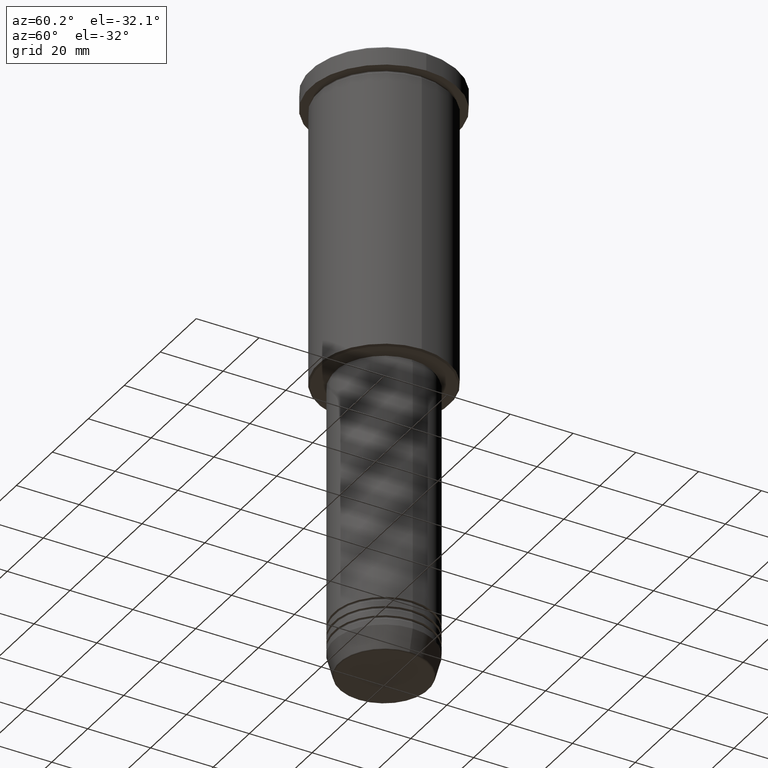
[diagram: clean part render]
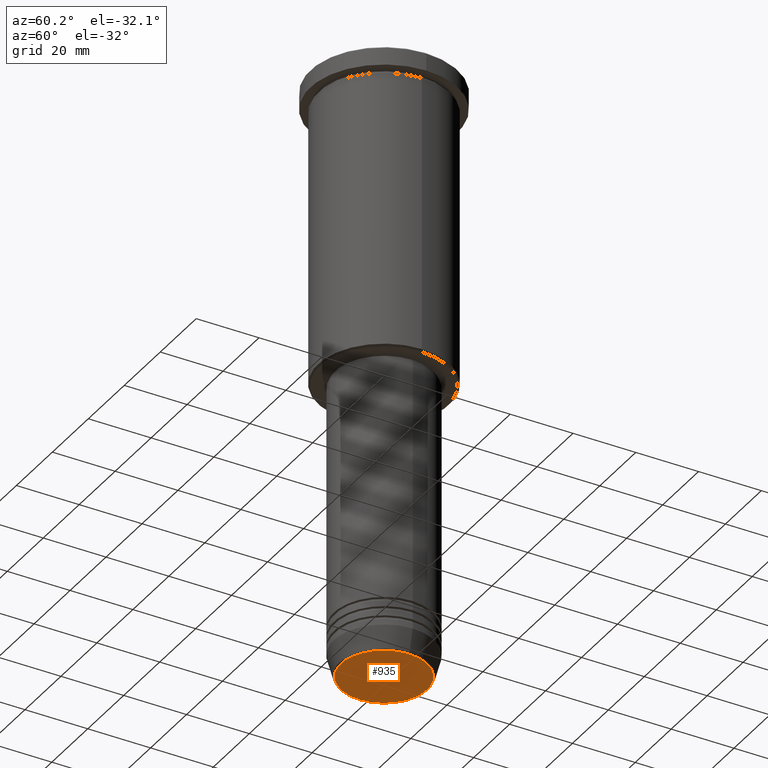
[diagram: same view with one face highlighted and labeled with its STEP entity id]
A machine part, auxiliary view. The second image highlights one B-rep face of the part: STEP entity #935.
In plain terms, the highlighted planar face has unit normal (0, -0, 1).
Its self-contained STEP definition (entity closure, byte-faithful):
#31 = ORIENTED_EDGE ( 'NONE', *, *, #977, .T. ) ;
#102 = AXIS2_PLACEMENT_3D ( 'NONE', #526, #979, #775 ) ;
#212 = EDGE_LOOP ( 'NONE', ( #31, #1052 ) ) ;
#260 = EDGE_CURVE ( 'NONE', #293, #599, #1113, .T. ) ;
#293 = VERTEX_POINT ( 'NONE', #789 ) ;
#309 = PLANE ( 'NONE',  #971 ) ;
#318 = CARTESIAN_POINT ( 'NONE',  ( 13.74069215899266538, 0.000000000000000000, -191.0000000000000000 ) ) ;
#395 = DIRECTION ( 'NONE',  ( 1.000000000000000000, 0.000000000000000000, 0.000000000000000000 ) ) ;
#504 = DIRECTION ( 'NONE',  ( 1.000000000000000000, 0.000000000000000000, 0.000000000000000000 ) ) ;
#526 = CARTESIAN_POINT ( 'NONE',  ( 0.000000000000000000, 0.000000000000000000, -191.0000000000000000 ) ) ;
#599 = VERTEX_POINT ( 'NONE', #318 ) ;
#680 = FACE_OUTER_BOUND ( 'NONE', #212, .T. ) ;
#699 = CIRCLE ( 'NONE', #853, 13.74069215899266538 ) ;
#775 = DIRECTION ( 'NONE',  ( 1.000000000000000000, 0.000000000000000000, 0.000000000000000000 ) ) ;
#789 = CARTESIAN_POINT ( 'NONE',  ( -13.74069215899266538, 1.712322416342416577E-15, -191.0000000000000000 ) ) ;
#853 = AXIS2_PLACEMENT_3D ( 'NONE', #968, #879, #395 ) ;
#879 = DIRECTION ( 'NONE',  ( 0.000000000000000000, 0.000000000000000000, -1.000000000000000000 ) ) ;
#935 = ADVANCED_FACE ( 'NONE', ( #680 ), #309, .F. ) ;
#958 = CARTESIAN_POINT ( 'NONE',  ( 0.000000000000000000, 0.000000000000000000, -191.0000000000000000 ) ) ;
#968 = CARTESIAN_POINT ( 'NONE',  ( 0.000000000000000000, 0.000000000000000000, -191.0000000000000000 ) ) ;
#971 = AXIS2_PLACEMENT_3D ( 'NONE', #958, #1140, #504 ) ;
#977 = EDGE_CURVE ( 'NONE', #599, #293, #699, .T. ) ;
#979 = DIRECTION ( 'NONE',  ( 0.000000000000000000, 0.000000000000000000, -1.000000000000000000 ) ) ;
#1052 = ORIENTED_EDGE ( 'NONE', *, *, #260, .T. ) ;
#1113 = CIRCLE ( 'NONE', #102, 13.74069215899266538 ) ;
#1140 = DIRECTION ( 'NONE',  ( 0.000000000000000000, -0.000000000000000000, 1.000000000000000000 ) ) ;